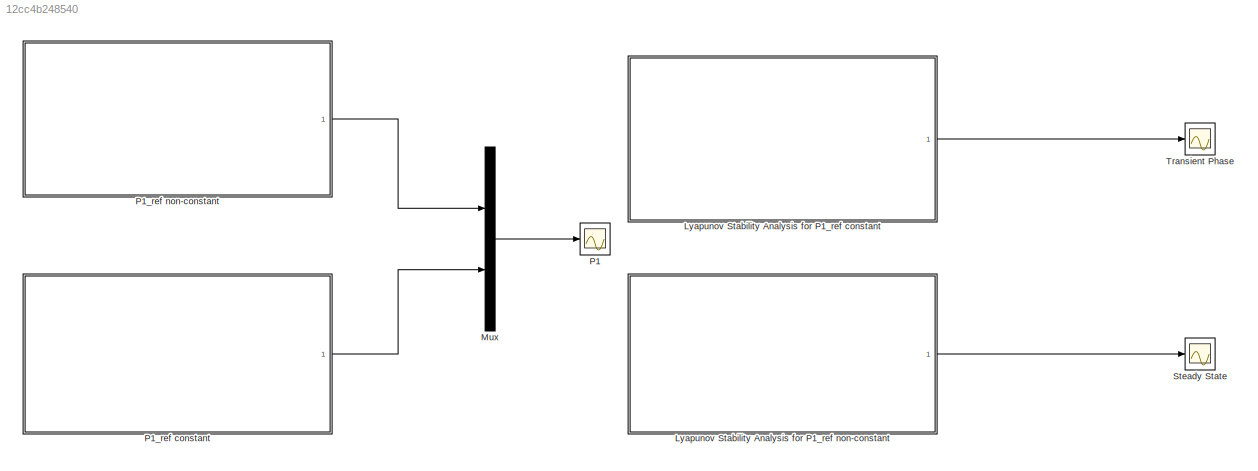
MODEL slx_12cc4b248540
KIND model
CONFIG AbsTol = auto
CONFIG EnableMultiTasking = off
CONFIG FixedStep = auto
CONFIG MaxStep = auto
CONFIG MinStep = auto
CONFIG RelTol = 1e-3
CONFIG SampleTimeConstraint = Unconstrained
CONFIG Solver = VariableStepAuto
CONFIG SolverName = VariableStepAuto
CONFIG StartTime = 0.0
CONFIG StopTime = 0.025
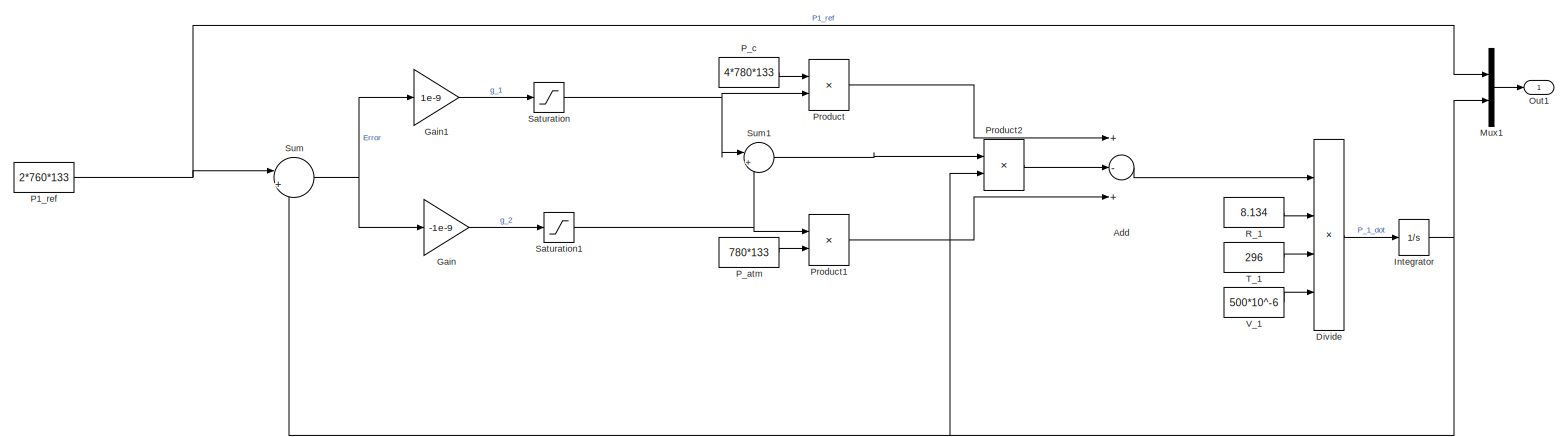
[diagram: Lyapunov Stability Analysis for P1_ref constant - part 1/1, most of the canvas]
BLOCK [SubSystem] Lyapunov Stability Analysis for P1_ref constant
  Ports = [0, 1]
  RequestExecContextInheritance = off
BLOCK [Sum] Lyapunov Stability Analysis for P1_ref constant/Add
  InputSameDT = off
  Inputs = +-+
  OutDataTypeStr = Inherit: Inherit via internal rule
  Ports = [3, 1]
  SaturateOnIntegerOverflow = off
BLOCK [Product] Lyapunov Stability Analysis for P1_ref constant/Divide
  InputSameDT = off
  Inputs = ***/
  OutDataTypeStr = Inherit: Inherit via internal rule
  Ports = [4, 1]
  RndMeth = Floor
  SaturateOnIntegerOverflow = off
BLOCK [Gain] Lyapunov Stability Analysis for P1_ref constant/Gain
  Gain = -1e-9
  OutDataTypeStr = Inherit: Inherit via internal rule
  ParamDataTypeStr = Inherit: Inherit via internal rule
  SaturateOnIntegerOverflow = off
BLOCK [Gain] Lyapunov Stability Analysis for P1_ref constant/Gain1
  Gain = 1e-9
  OutDataTypeStr = Inherit: Inherit via internal rule
  ParamDataTypeStr = Inherit: Inherit via internal rule
  SaturateOnIntegerOverflow = off
BLOCK [Integrator] Lyapunov Stability Analysis for P1_ref constant/Integrator
  Ports = [1, 1]
BLOCK [Mux] Lyapunov Stability Analysis for P1_ref constant/Mux1
  DisplayOption = bar
  Inputs = 2
  Ports = [2, 1]
BLOCK [Outport] Lyapunov Stability Analysis for P1_ref constant/Out1
  IconDisplay = Port number
BLOCK [Constant] Lyapunov Stability Analysis for P1_ref constant/P1_ref
  Value = 2*760*133
BLOCK [Constant] Lyapunov Stability Analysis for P1_ref constant/P_atm
  Value = 780*133
BLOCK [Constant] Lyapunov Stability Analysis for P1_ref constant/P_c
  Value = 4*780*133
BLOCK [Product] Lyapunov Stability Analysis for P1_ref constant/Product
  InputSameDT = off
  OutDataTypeStr = Inherit: Inherit via internal rule
  Ports = [2, 1]
  RndMeth = Floor
  SaturateOnIntegerOverflow = off
BLOCK [Product] Lyapunov Stability Analysis for P1_ref constant/Product1
  InputSameDT = off
  OutDataTypeStr = Inherit: Inherit via internal rule
  Ports = [2, 1]
  RndMeth = Floor
  SaturateOnIntegerOverflow = off
BLOCK [Product] Lyapunov Stability Analysis for P1_ref constant/Product2
  InputSameDT = off
  OutDataTypeStr = Inherit: Inherit via internal rule
  Ports = [2, 1]
  RndMeth = Floor
  SaturateOnIntegerOverflow = off
BLOCK [Constant] Lyapunov Stability Analysis for P1_ref constant/R_1
  Value = 8.134
BLOCK [Saturate] Lyapunov Stability Analysis for P1_ref constant/Saturation
  InputPortMap = u0
  Ports = [1, 1]
BLOCK [Saturate] Lyapunov Stability Analysis for P1_ref constant/Saturation1
  InputPortMap = u0
  Ports = [1, 1]
BLOCK [Sum] Lyapunov Stability Analysis for P1_ref constant/Sum
  IconShape = round
  InputSameDT = off
  Inputs = |+-
  OutDataTypeStr = Inherit: Inherit via internal rule
  Ports = [2, 1]
  SaturateOnIntegerOverflow = off
BLOCK [Sum] Lyapunov Stability Analysis for P1_ref constant/Sum1
  IconShape = round
  InputSameDT = off
  Inputs = |++
  OutDataTypeStr = Inherit: Inherit via internal rule
  Ports = [2, 1]
  SaturateOnIntegerOverflow = off
BLOCK [Constant] Lyapunov Stability Analysis for P1_ref constant/T_1
  Value = 296
BLOCK [Constant] Lyapunov Stability Analysis for P1_ref constant/V_1
  Value = 500*10^-6
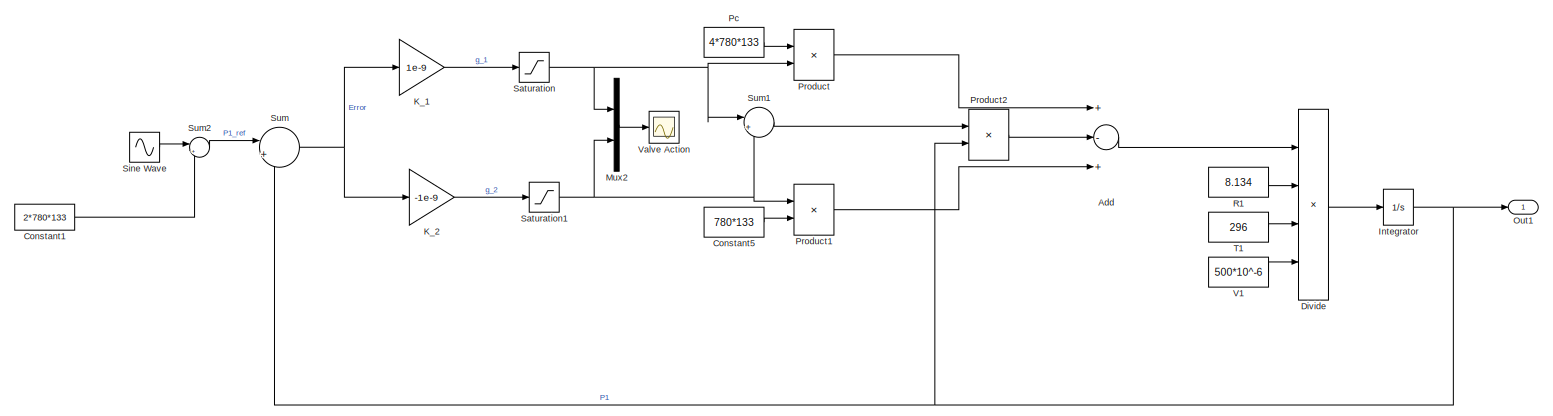
[diagram: Lyapunov Stability Analysis for P1_ref non-constant - part 1/1, most of the canvas]
BLOCK [SubSystem] Lyapunov Stability Analysis for P1_ref non-constant
  Ports = [0, 1]
  RequestExecContextInheritance = off
BLOCK [Sum] Lyapunov Stability Analysis for P1_ref non-constant/Add
  InputSameDT = off
  Inputs = +-+
  OutDataTypeStr = Inherit: Inherit via internal rule
  Ports = [3, 1]
  SaturateOnIntegerOverflow = off
BLOCK [Constant] Lyapunov Stability Analysis for P1_ref non-constant/Constant1
  Value = 2*780*133
BLOCK [Constant] Lyapunov Stability Analysis for P1_ref non-constant/Constant5
  Value = 780*133
BLOCK [Product] Lyapunov Stability Analysis for P1_ref non-constant/Divide
  InputSameDT = off
  Inputs = ***/
  OutDataTypeStr = Inherit: Inherit via internal rule
  Ports = [4, 1]
  RndMeth = Floor
  SaturateOnIntegerOverflow = off
BLOCK [Integrator] Lyapunov Stability Analysis for P1_ref non-constant/Integrator
  Ports = [1, 1]
BLOCK [Gain] Lyapunov Stability Analysis for P1_ref non-constant/K_1
  Gain = 1e-9
  OutDataTypeStr = Inherit: Inherit via internal rule
  ParamDataTypeStr = Inherit: Inherit via internal rule
  SaturateOnIntegerOverflow = off
BLOCK [Gain] Lyapunov Stability Analysis for P1_ref non-constant/K_2
  Gain = -1e-9
  OutDataTypeStr = Inherit: Inherit via internal rule
  ParamDataTypeStr = Inherit: Inherit via internal rule
  SaturateOnIntegerOverflow = off
BLOCK [Mux] Lyapunov Stability Analysis for P1_ref non-constant/Mux2
  DisplayOption = bar
  Inputs = 2
  Ports = [2, 1]
BLOCK [Outport] Lyapunov Stability Analysis for P1_ref non-constant/Out1
  IconDisplay = Port number
BLOCK [Constant] Lyapunov Stability Analysis for P1_ref non-constant/Pc
  Value = 4*780*133
BLOCK [Product] Lyapunov Stability Analysis for P1_ref non-constant/Product
  InputSameDT = off
  OutDataTypeStr = Inherit: Inherit via internal rule
  Ports = [2, 1]
  RndMeth = Floor
  SaturateOnIntegerOverflow = off
BLOCK [Product] Lyapunov Stability Analysis for P1_ref non-constant/Product1
  InputSameDT = off
  OutDataTypeStr = Inherit: Inherit via internal rule
  Ports = [2, 1]
  RndMeth = Floor
  SaturateOnIntegerOverflow = off
BLOCK [Product] Lyapunov Stability Analysis for P1_ref non-constant/Product2
  InputSameDT = off
  OutDataTypeStr = Inherit: Inherit via internal rule
  Ports = [2, 1]
  RndMeth = Floor
  SaturateOnIntegerOverflow = off
BLOCK [Constant] Lyapunov Stability Analysis for P1_ref non-constant/R1
  Value = 8.134
BLOCK [Saturate] Lyapunov Stability Analysis for P1_ref non-constant/Saturation
  InputPortMap = u0
  Ports = [1, 1]
BLOCK [Saturate] Lyapunov Stability Analysis for P1_ref non-constant/Saturation1
  InputPortMap = u0
  Ports = [1, 1]
BLOCK [Sin] Lyapunov Stability Analysis for P1_ref non-constant/Sine Wave
  Amplitude = 2*780*133
  Frequency = 1000
  Ports = [0, 1]
  SampleTime = 0
BLOCK [Sum] Lyapunov Stability Analysis for P1_ref non-constant/Sum
  IconShape = round
  InputSameDT = off
  Inputs = |+-
  OutDataTypeStr = Inherit: Inherit via internal rule
  Ports = [2, 1]
  SaturateOnIntegerOverflow = off
BLOCK [Sum] Lyapunov Stability Analysis for P1_ref non-constant/Sum1
  IconShape = round
  InputSameDT = off
  Inputs = |++
  OutDataTypeStr = Inherit: Inherit via internal rule
  Ports = [2, 1]
  SaturateOnIntegerOverflow = off
BLOCK [Sum] Lyapunov Stability Analysis for P1_ref non-constant/Sum2
  IconShape = round
  InputSameDT = off
  Inputs = |++
  OutDataTypeStr = Inherit: Inherit via internal rule
  Ports = [2, 1]
  SaturateOnIntegerOverflow = off
BLOCK [Constant] Lyapunov Stability Analysis for P1_ref non-constant/T1
  Value = 296
BLOCK [Constant] Lyapunov Stability Analysis for P1_ref non-constant/V1
  Value = 500*10^-6
BLOCK [Scope] Lyapunov Stability Analysis for P1_ref non-constant/Valve Action 
  Floating = off
  NumInputPorts = 1
  Ports = [1]
  ScopeSpecificationString = Simulink.scopes.TimeScopeBlockCfg('CurrentConfiguration', extmgr.ConfigurationSet(extmgr.Configuration('Core','General UI',true),extmgr.Configuration('Core','Source UI',true),extmgr.Configuration('Sources','WiredSimulink',true,'DataLoggingVariableName','ScopeData3'),extmgr.Configuration('Visuals','Time Domain',true,'SerializedDisplays',{struct('MinYLimReal','-0.00026','MaxYLimReal','0.00026','YLab...<+1383ch>
BLOCK [Mux] Mux
  DisplayOption = bar
  Inputs = 2
  Ports = [2, 1]
BLOCK [Scope] P1
  Floating = off
  NumInputPorts = 1
  Ports = [1]
  ScopeSpecificationString = Simulink.scopes.TimeScopeBlockCfg('CurrentConfiguration', extmgr.ConfigurationSet(extmgr.Configuration('Core','General UI',true),extmgr.Configuration('Core','Source UI',true),extmgr.Configuration('Sources','WiredSimulink',true),extmgr.Configuration('Visuals','Time Domain',true,'SerializedDisplays',{struct('MinYLimReal','-132645.49987','MaxYLimReal','127049.49999','YLabelReal','','MinYLimMag','    ...<+1395ch>
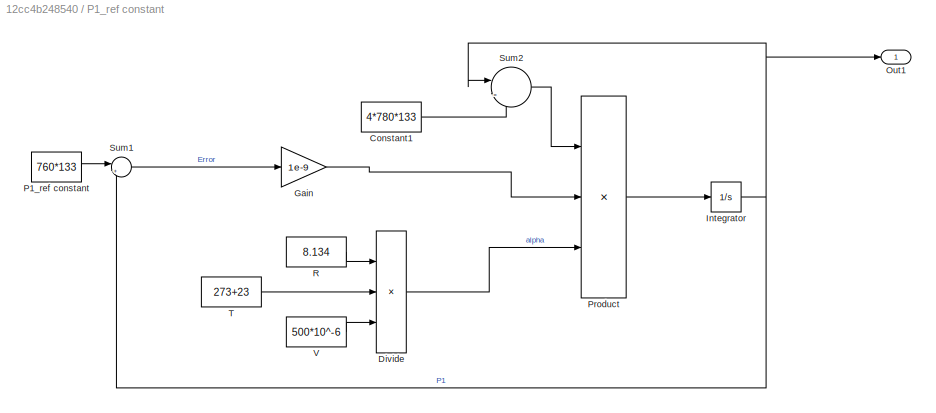
BLOCK [SubSystem] P1_ref constant
  Ports = [0, 1]
  RequestExecContextInheritance = off
BLOCK [Constant] P1_ref constant/Constant1
  Value = 4*780*133
BLOCK [Product] P1_ref constant/Divide
  InputSameDT = off
  Inputs = **/
  OutDataTypeStr = Inherit: Inherit via internal rule
  Ports = [3, 1]
  RndMeth = Floor
  SaturateOnIntegerOverflow = off
BLOCK [Gain] P1_ref constant/Gain
  Gain = 1e-9
  OutDataTypeStr = Inherit: Inherit via internal rule
  ParamDataTypeStr = Inherit: Inherit via internal rule
  SaturateOnIntegerOverflow = off
BLOCK [Integrator] P1_ref constant/Integrator
  Ports = [1, 1]
BLOCK [Outport] P1_ref constant/Out1
  IconDisplay = Port number
BLOCK [Constant] P1_ref constant/P1_ref constant
  Value = 760*133
BLOCK [Product] P1_ref constant/Product
  InputSameDT = off
  Inputs = 3
  OutDataTypeStr = Inherit: Inherit via internal rule
  Ports = [3, 1]
  RndMeth = Floor
  SaturateOnIntegerOverflow = off
BLOCK [Constant] P1_ref constant/R
  Value = 8.134
BLOCK [Sum] P1_ref constant/Sum1
  IconShape = round
  InputSameDT = off
  Inputs = |+-
  OutDataTypeStr = Inherit: Inherit via internal rule
  Ports = [2, 1]
  SaturateOnIntegerOverflow = off
BLOCK [Sum] P1_ref constant/Sum2
  IconShape = round
  InputSameDT = off
  Inputs = |-+
  OutDataTypeStr = Inherit: Inherit via internal rule
  Ports = [2, 1]
  SaturateOnIntegerOverflow = off
BLOCK [Constant] P1_ref constant/T
  Value = 273+23
BLOCK [Constant] P1_ref constant/V
  Value = 500*10^-6
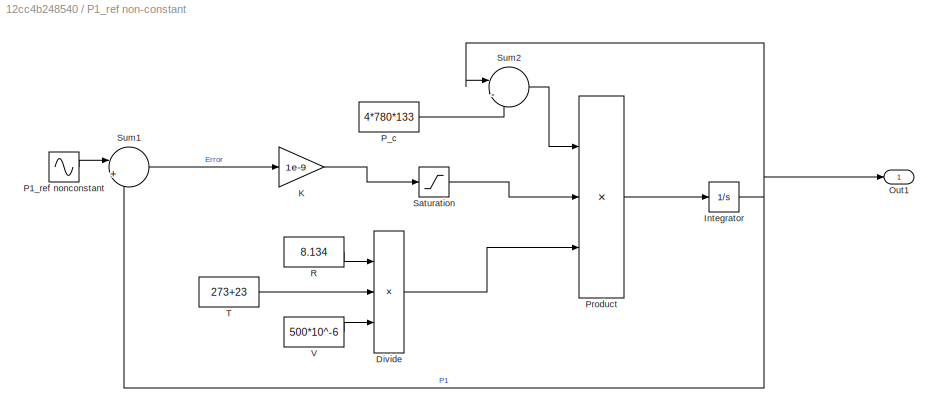
BLOCK [SubSystem] P1_ref non-constant
  Ports = [0, 1]
  RequestExecContextInheritance = off
BLOCK [Product] P1_ref non-constant/Divide
  InputSameDT = off
  Inputs = **/
  OutDataTypeStr = Inherit: Inherit via internal rule
  Ports = [3, 1]
  RndMeth = Floor
  SaturateOnIntegerOverflow = off
BLOCK [Integrator] P1_ref non-constant/Integrator
  Ports = [1, 1]
BLOCK [Gain] P1_ref non-constant/K
  Gain = 1e-9
  OutDataTypeStr = Inherit: Inherit via internal rule
  ParamDataTypeStr = Inherit: Inherit via internal rule
  SaturateOnIntegerOverflow = off
BLOCK [Outport] P1_ref non-constant/Out1
  IconDisplay = Port number
BLOCK [Sin] P1_ref non-constant/P1_ref nonconstant
  Amplitude = 760*133*1.15
  Frequency = 1000
  Ports = [0, 1]
  SampleTime = 0
BLOCK [Constant] P1_ref non-constant/P_c
  Value = 4*780*133
BLOCK [Product] P1_ref non-constant/Product
  InputSameDT = off
  Inputs = 3
  OutDataTypeStr = Inherit: Inherit via internal rule
  Ports = [3, 1]
  RndMeth = Floor
  SaturateOnIntegerOverflow = off
BLOCK [Constant] P1_ref non-constant/R
  Value = 8.134
BLOCK [Saturate] P1_ref non-constant/Saturation
  InputPortMap = u0
  Ports = [1, 1]
BLOCK [Sum] P1_ref non-constant/Sum1
  IconShape = round
  InputSameDT = off
  Inputs = |+-
  OutDataTypeStr = Inherit: Inherit via internal rule
  Ports = [2, 1]
  SaturateOnIntegerOverflow = off
BLOCK [Sum] P1_ref non-constant/Sum2
  IconShape = round
  InputSameDT = off
  Inputs = |-+
  OutDataTypeStr = Inherit: Inherit via internal rule
  Ports = [2, 1]
  SaturateOnIntegerOverflow = off
BLOCK [Constant] P1_ref non-constant/T
  Value = 273+23
BLOCK [Constant] P1_ref non-constant/V
  Value = 500*10^-6
BLOCK [Scope] Steady State
  Floating = off
  NumInputPorts = 1
  Ports = [1]
  ScopeSpecificationString = Simulink.scopes.TimeScopeBlockCfg('CurrentConfiguration', extmgr.ConfigurationSet(extmgr.Configuration('Core','General UI',true),extmgr.Configuration('Core','Source UI',true),extmgr.Configuration('Sources','WiredSimulink',true,'DataLoggingVariableName','ScopeData2'),extmgr.Configuration('Visuals','Time Domain',true,'SerializedDisplays',{struct('MinYLimReal','-47469.41973','MaxYLimReal','427224.777...<+1444ch>
BLOCK [Scope] Transient Phase
  Floating = off
  NumInputPorts = 1
  Ports = [1]
  ScopeSpecificationString = Simulink.scopes.TimeScopeBlockCfg('CurrentConfiguration', extmgr.ConfigurationSet(extmgr.Configuration('Core','General UI',true),extmgr.Configuration('Core','Source UI',true),extmgr.Configuration('Sources','WiredSimulink',true,'DataLoggingVariableName','ScopeData1'),extmgr.Configuration('Visuals','Time Domain',true,'SerializedDisplays',{struct('MinYLimReal','-25270.00000','MaxYLimReal','227430.000...<+1494ch>
LINE Lyapunov Stability Analysis for P1_ref constant/Add:1 -> Lyapunov Stability Analysis for P1_ref constant/Divide:1
LINE Lyapunov Stability Analysis for P1_ref constant/Divide:1 -> Lyapunov Stability Analysis for P1_ref constant/Integrator:1
LINE Lyapunov Stability Analysis for P1_ref constant/Gain1:1 -> Lyapunov Stability Analysis for P1_ref constant/Saturation:1
LINE Lyapunov Stability Analysis for P1_ref constant/Gain:1 -> Lyapunov Stability Analysis for P1_ref constant/Saturation1:1
NET Lyapunov Stability Analysis for P1_ref constant/Integrator:1 -> Lyapunov Stability Analysis for P1_ref constant/Mux1:2, Lyapunov Stability Analysis for P1_ref constant/Product2:2, Lyapunov Stability Analysis for P1_ref constant/Sum:2
LINE Lyapunov Stability Analysis for P1_ref constant/Mux1:1 -> Lyapunov Stability Analysis for P1_ref constant/Out1:1
NET Lyapunov Stability Analysis for P1_ref constant/P1_ref:1 -> Lyapunov Stability Analysis for P1_ref constant/Mux1:1, Lyapunov Stability Analysis for P1_ref constant/Sum:1
LINE Lyapunov Stability Analysis for P1_ref constant/P_atm:1 -> Lyapunov Stability Analysis for P1_ref constant/Product1:2
LINE Lyapunov Stability Analysis for P1_ref constant/P_c:1 -> Lyapunov Stability Analysis for P1_ref constant/Product:1
LINE Lyapunov Stability Analysis for P1_ref constant/Product1:1 -> Lyapunov Stability Analysis for P1_ref constant/Add:3
LINE Lyapunov Stability Analysis for P1_ref constant/Product2:1 -> Lyapunov Stability Analysis for P1_ref constant/Add:2
LINE Lyapunov Stability Analysis for P1_ref constant/Product:1 -> Lyapunov Stability Analysis for P1_ref constant/Add:1
LINE Lyapunov Stability Analysis for P1_ref constant/R_1:1 -> Lyapunov Stability Analysis for P1_ref constant/Divide:2
NET Lyapunov Stability Analysis for P1_ref constant/Saturation1:1 -> Lyapunov Stability Analysis for P1_ref constant/Product1:1, Lyapunov Stability Analysis for P1_ref constant/Sum1:2
NET Lyapunov Stability Analysis for P1_ref constant/Saturation:1 -> Lyapunov Stability Analysis for P1_ref constant/Product:2, Lyapunov Stability Analysis for P1_ref constant/Sum1:1
LINE Lyapunov Stability Analysis for P1_ref constant/Sum1:1 -> Lyapunov Stability Analysis for P1_ref constant/Product2:1
NET Lyapunov Stability Analysis for P1_ref constant/Sum:1 -> Lyapunov Stability Analysis for P1_ref constant/Gain1:1, Lyapunov Stability Analysis for P1_ref constant/Gain:1
LINE Lyapunov Stability Analysis for P1_ref constant/T_1:1 -> Lyapunov Stability Analysis for P1_ref constant/Divide:3
LINE Lyapunov Stability Analysis for P1_ref constant/V_1:1 -> Lyapunov Stability Analysis for P1_ref constant/Divide:4
LINE Lyapunov Stability Analysis for P1_ref constant:1 -> Transient Phase:1
LINE Lyapunov Stability Analysis for P1_ref non-constant/Add:1 -> Lyapunov Stability Analysis for P1_ref non-constant/Divide:1
LINE Lyapunov Stability Analysis for P1_ref non-constant/Constant1:1 -> Lyapunov Stability Analysis for P1_ref non-constant/Sum2:2
LINE Lyapunov Stability Analysis for P1_ref non-constant/Constant5:1 -> Lyapunov Stability Analysis for P1_ref non-constant/Product1:2
LINE Lyapunov Stability Analysis for P1_ref non-constant/Divide:1 -> Lyapunov Stability Analysis for P1_ref non-constant/Integrator:1
NET Lyapunov Stability Analysis for P1_ref non-constant/Integrator:1 -> Lyapunov Stability Analysis for P1_ref non-constant/Out1:1, Lyapunov Stability Analysis for P1_ref non-constant/Product2:2, Lyapunov Stability Analysis for P1_ref non-constant/Sum:2
LINE Lyapunov Stability Analysis for P1_ref non-constant/K_1:1 -> Lyapunov Stability Analysis for P1_ref non-constant/Saturation:1
LINE Lyapunov Stability Analysis for P1_ref non-constant/K_2:1 -> Lyapunov Stability Analysis for P1_ref non-constant/Saturation1:1
LINE Lyapunov Stability Analysis for P1_ref non-constant/Mux2:1 -> Lyapunov Stability Analysis for P1_ref non-constant/Valve Action :1
LINE Lyapunov Stability Analysis for P1_ref non-constant/Pc:1 -> Lyapunov Stability Analysis for P1_ref non-constant/Product:1
LINE Lyapunov Stability Analysis for P1_ref non-constant/Product1:1 -> Lyapunov Stability Analysis for P1_ref non-constant/Add:3
LINE Lyapunov Stability Analysis for P1_ref non-constant/Product2:1 -> Lyapunov Stability Analysis for P1_ref non-constant/Add:2
LINE Lyapunov Stability Analysis for P1_ref non-constant/Product:1 -> Lyapunov Stability Analysis for P1_ref non-constant/Add:1
LINE Lyapunov Stability Analysis for P1_ref non-constant/R1:1 -> Lyapunov Stability Analysis for P1_ref non-constant/Divide:2
NET Lyapunov Stability Analysis for P1_ref non-constant/Saturation1:1 -> Lyapunov Stability Analysis for P1_ref non-constant/Mux2:2, Lyapunov Stability Analysis for P1_ref non-constant/Product1:1, Lyapunov Stability Analysis for P1_ref non-constant/Sum1:2
NET Lyapunov Stability Analysis for P1_ref non-constant/Saturation:1 -> Lyapunov Stability Analysis for P1_ref non-constant/Mux2:1, Lyapunov Stability Analysis for P1_ref non-constant/Product:2, Lyapunov Stability Analysis for P1_ref non-constant/Sum1:1
LINE Lyapunov Stability Analysis for P1_ref non-constant/Sine Wave:1 -> Lyapunov Stability Analysis for P1_ref non-constant/Sum2:1
LINE Lyapunov Stability Analysis for P1_ref non-constant/Sum1:1 -> Lyapunov Stability Analysis for P1_ref non-constant/Product2:1
LINE Lyapunov Stability Analysis for P1_ref non-constant/Sum2:1 -> Lyapunov Stability Analysis for P1_ref non-constant/Sum:1
NET Lyapunov Stability Analysis for P1_ref non-constant/Sum:1 -> Lyapunov Stability Analysis for P1_ref non-constant/K_1:1, Lyapunov Stability Analysis for P1_ref non-constant/K_2:1
LINE Lyapunov Stability Analysis for P1_ref non-constant/T1:1 -> Lyapunov Stability Analysis for P1_ref non-constant/Divide:3
LINE Lyapunov Stability Analysis for P1_ref non-constant/V1:1 -> Lyapunov Stability Analysis for P1_ref non-constant/Divide:4
LINE Lyapunov Stability Analysis for P1_ref non-constant:1 -> Steady State:1
LINE Mux:1 -> P1:1
LINE P1_ref constant/Constant1:1 -> P1_ref constant/Sum2:2
LINE P1_ref constant/Divide:1 -> P1_ref constant/Product:3
LINE P1_ref constant/Gain:1 -> P1_ref constant/Product:2
NET P1_ref constant/Integrator:1 -> P1_ref constant/Out1:1, P1_ref constant/Sum1:2, P1_ref constant/Sum2:1
LINE P1_ref constant/P1_ref constant:1 -> P1_ref constant/Sum1:1
LINE P1_ref constant/Product:1 -> P1_ref constant/Integrator:1
LINE P1_ref constant/R:1 -> P1_ref constant/Divide:1
LINE P1_ref constant/Sum1:1 -> P1_ref constant/Gain:1
LINE P1_ref constant/Sum2:1 -> P1_ref constant/Product:1
LINE P1_ref constant/T:1 -> P1_ref constant/Divide:2
LINE P1_ref constant/V:1 -> P1_ref constant/Divide:3
LINE P1_ref constant:1 -> Mux:2
LINE P1_ref non-constant/Divide:1 -> P1_ref non-constant/Product:3
NET P1_ref non-constant/Integrator:1 -> P1_ref non-constant/Out1:1, P1_ref non-constant/Sum1:2, P1_ref non-constant/Sum2:1
LINE P1_ref non-constant/K:1 -> P1_ref non-constant/Saturation:1
LINE P1_ref non-constant/P1_ref nonconstant:1 -> P1_ref non-constant/Sum1:1
LINE P1_ref non-constant/P_c:1 -> P1_ref non-constant/Sum2:2
LINE P1_ref non-constant/Product:1 -> P1_ref non-constant/Integrator:1
LINE P1_ref non-constant/R:1 -> P1_ref non-constant/Divide:1
LINE P1_ref non-constant/Saturation:1 -> P1_ref non-constant/Product:2
LINE P1_ref non-constant/Sum1:1 -> P1_ref non-constant/K:1
LINE P1_ref non-constant/Sum2:1 -> P1_ref non-constant/Product:1
LINE P1_ref non-constant/T:1 -> P1_ref non-constant/Divide:2
LINE P1_ref non-constant/V:1 -> P1_ref non-constant/Divide:3
LINE P1_ref non-constant:1 -> Mux:1
note: NET lines group one-source signal fan-out (src -> all destinations, sorted); 1:1 wires keep LINE
